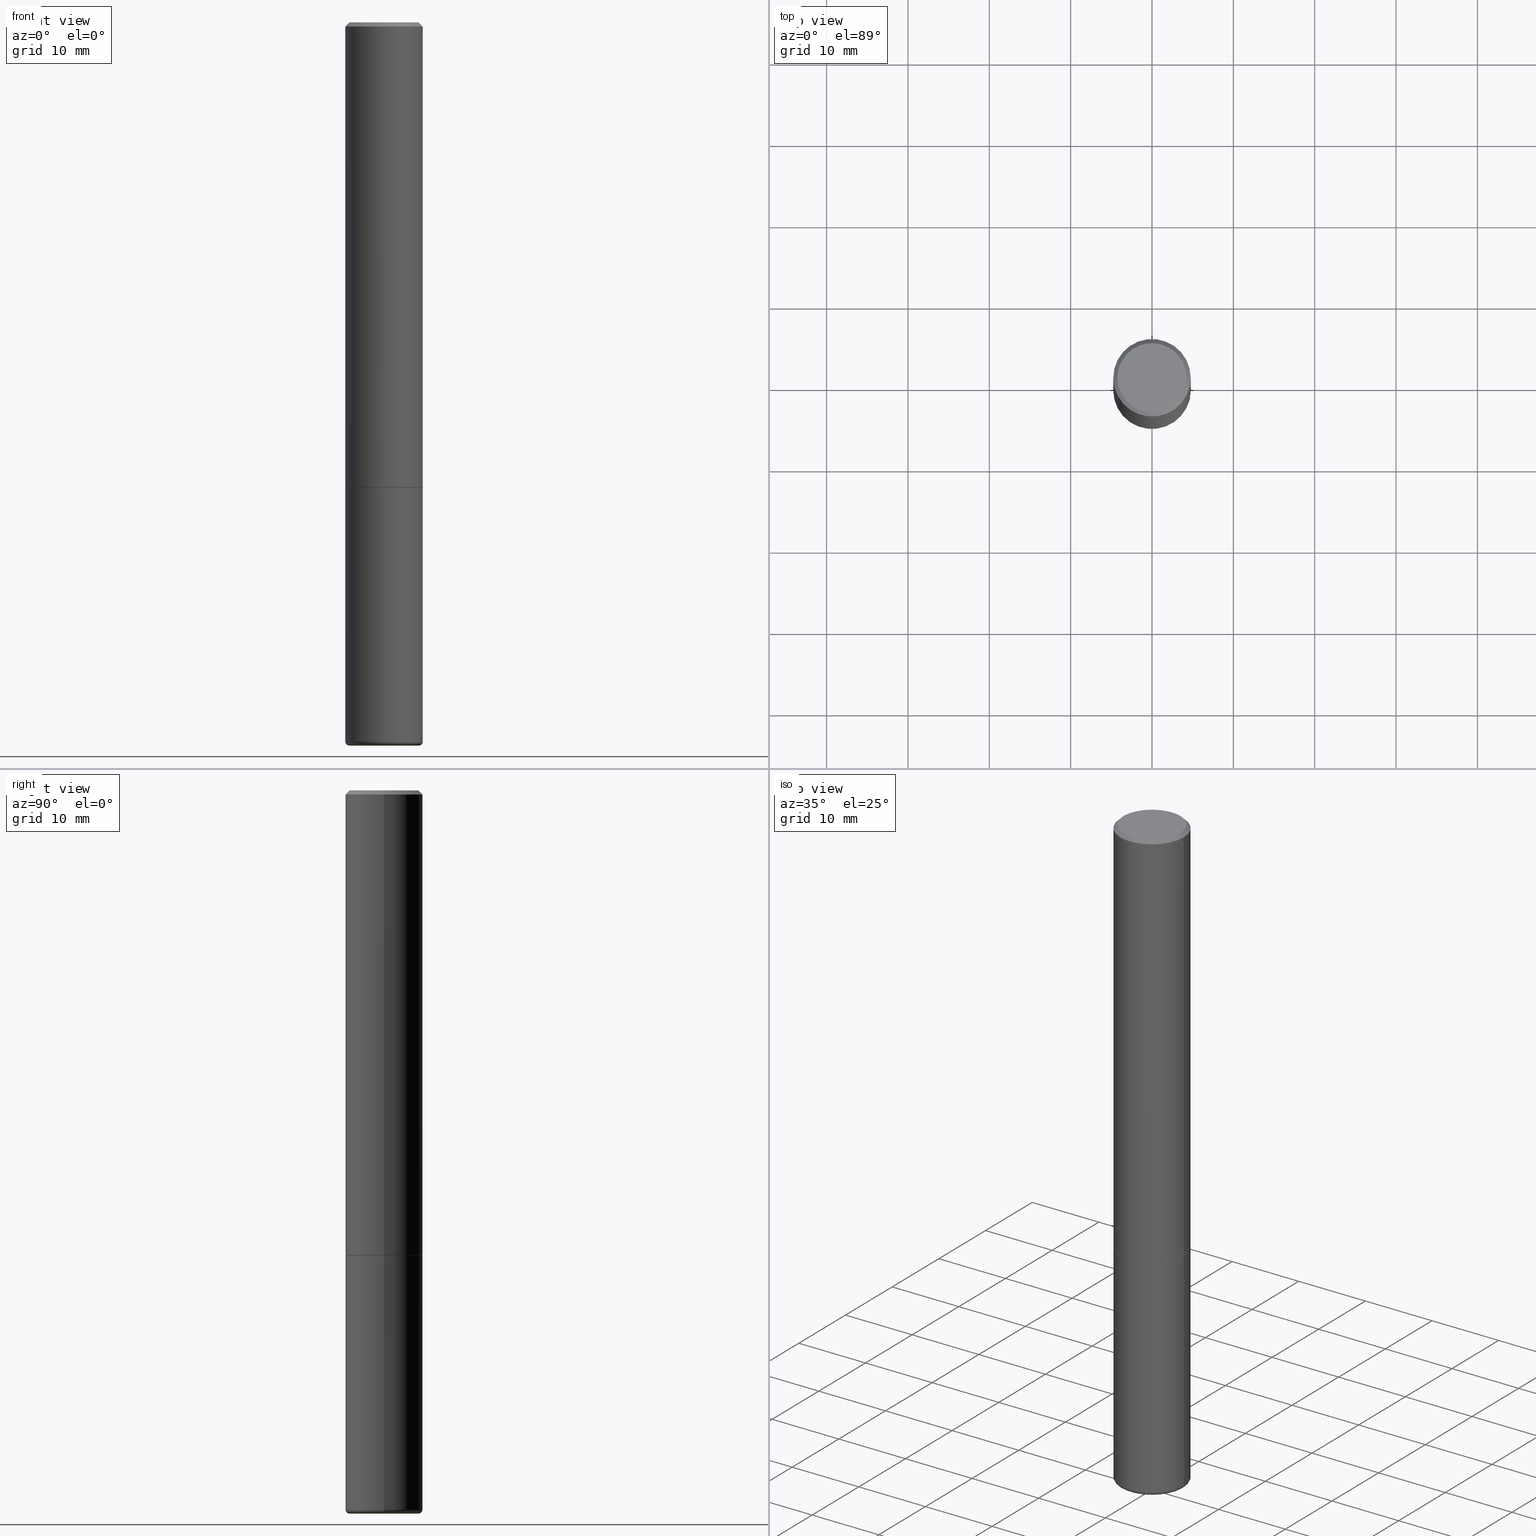
[diagram: canonical four-view strip — front | top / right | iso, engineering-drawing reading convention]
A machine part, canonical four-view strip (front | top / right | iso — engineering-drawing reading convention). The complete STEP part file that produces these views, byte-faithful:
ISO-10303-21;
HEADER;
FILE_DESCRIPTION (( 'STEP AP203' ),
    '1' );
FILE_NAME ('33462.STEP',
    '2022-11-02T20:12:53',
    ( '' ),
    ( '' ),
    'SwSTEP 2.0',
    'SolidWorks 2022',
    '' );
FILE_SCHEMA (( 'CONFIG_CONTROL_DESIGN' ));
ENDSEC;

DATA;
#1 = DIRECTION ( 'NONE',  ( -2.445468806185136877E-29, 3.491481338843145188E-15, 1.000000000000000000 ) ) ;
#2 = CC_DESIGN_PERSON_AND_ORGANIZATION_ASSIGNMENT ( #371, #306, ( #216 ) ) ;
#3 = DIRECTION ( 'NONE',  ( -0.9999619230641714207, 6.952228252019235511E-15, -0.008726535498355246501 ) ) ;
#4 = DIRECTION ( 'NONE',  ( -2.445468806185136597E-29, 3.491481338843145583E-15, 1.000000000000000000 ) ) ;
#5 = VERTEX_POINT ( 'NONE', #22 ) ;
#6 = CARTESIAN_POINT ( 'NONE',  ( -0.1675000000000002043, -1.096019863567419321E-14, -3.480000761538716514 ) ) ;
#7 = DIRECTION ( 'NONE',  ( -1.000000000000000000, 6.982962677686265133E-15, 0.000000000000000000 ) ) ;
#8 = APPROVAL ( #405, 'UNSPECIFIED' ) ;
#9 = FACE_OUTER_BOUND ( 'NONE', #156, .T. ) ;
#10 = DIRECTION ( 'NONE',  ( -2.445468806185136597E-29, 3.491481338843145583E-15, 1.000000000000000000 ) ) ;
#11 = DIRECTION ( 'NONE',  ( -2.445468806185136597E-29, 3.491481338843145583E-15, 1.000000000000000000 ) ) ;
#12 = FACE_OUTER_BOUND ( 'NONE', #208, .T. ) ;
#13 = MANIFOLD_SOLID_BREP ( 'Body-Move/Copy2[2]', #46 ) ;
#14 = DESIGN_CONTEXT ( 'detailed design', #209, 'design' ) ;
#15 = EDGE_CURVE ( 'NONE', #67, #95, #146, .T. ) ;
#16 = DIRECTION ( 'NONE',  ( -1.000000000000000000, 6.982962677686265922E-15, -4.876176775795935793E-29 ) ) ;
#17 = CIRCLE ( 'NONE', #416, 0.01999999999999982001 ) ;
#18 = AXIS2_PLACEMENT_3D ( 'NONE', #252, #356, #7 ) ;
#19 = CIRCLE ( 'NONE', #232, 0.1673254692900328355 ) ;
#20 = DIRECTION ( 'NONE',  ( -2.445468806185136597E-29, 3.491481338843145583E-15, 1.000000000000000000 ) ) ;
#21 = CIRCLE ( 'NONE', #122, 0.1473267192900328260 ) ;
#22 = CARTESIAN_POINT ( 'NONE',  ( 0.1864999999999999714, -9.158155551785564287E-15, -2.249999999999999556 ) ) ;
#23 = LINE ( 'NONE', #268, #202 ) ;
#24 = APPROVAL_ROLE ( '' ) ;
#25 = ORIENTED_EDGE ( 'NONE', *, *, #89, .T. ) ;
#26 =( LENGTH_UNIT ( ) NAMED_UNIT ( * ) SI_UNIT ( $, .METRE. ) );
#27 = DIRECTION ( 'NONE',  ( -1.000000000000000000, 6.982962677686262766E-15, 0.000000000000000000 ) ) ;
#28 = DIRECTION ( 'NONE',  ( -2.445468806185136597E-29, 3.491481338843145583E-15, 1.000000000000000000 ) ) ;
#29 = APPROVAL_STATUS ( 'not_yet_approved' ) ;
#30 = CONICAL_SURFACE ( 'NONE', #295, 0.1874999999999993061, 0.7853981633974471688 ) ;
#31 = ORIENTED_EDGE ( 'NONE', *, *, #227, .F. ) ;
#32 = LENGTH_MEASURE_WITH_UNIT ( LENGTH_MEASURE( 0.02539999999999999897 ), #26 );
#33 = COORDINATED_UNIVERSAL_TIME_OFFSET ( 5, 0, .BEHIND. ) ;
#34 = CARTESIAN_POINT ( 'NONE',  ( -0.1473267192900328260, -1.119079834788911139E-14, -3.499825473552769850 ) ) ;
#35 = VERTEX_POINT ( 'NONE', #175 ) ;
#36 = AXIS2_PLACEMENT_3D ( 'NONE', #297, #394, #437 ) ;
#37 = CARTESIAN_POINT ( 'NONE',  ( -0.1673254692900328355, -1.105175717887237073E-14, -3.500000000000000000 ) ) ;
#38 = ORIENTED_EDGE ( 'NONE', *, *, #57, .F. ) ;
#39 = DIRECTION ( 'NONE',  ( 1.000000000000000000, -6.982962677686267499E-15, 4.876176775795935232E-29 ) ) ;
#40 = ADVANCED_FACE ( 'NONE', ( #9 ), #30, .T. ) ;
#41 = DIRECTION ( 'NONE',  ( 1.000000000000000000, -6.982962677686262766E-15, 0.000000000000000000 ) ) ;
#42 = CARTESIAN_POINT ( 'NONE',  ( -0.1875000000000000278, -8.670827735684531822E-15, -2.249999999999999556 ) ) ;
#43 = CARTESIAN_POINT ( 'NONE',  ( 0.1874999999999999722, -1.309305502066174811E-15, 9.142831454617378210E-30 ) ) ;
#44 = CIRCLE ( 'NONE', #323, 0.1874999999999999722 ) ;
#45 = ORIENTED_EDGE ( 'NONE', *, *, #346, .T. ) ;
#46 = CLOSED_SHELL ( 'NONE', ( #322, #165, #74, #40, #170, #336, #414, #400 ) ) ;
#47 = DIRECTION ( 'NONE',  ( -2.445468806185136597E-29, 3.491481338843145583E-15, 1.000000000000000000 ) ) ;
#48 = ORIENTED_EDGE ( 'NONE', *, *, #104, .F. ) ;
#49 = EDGE_CURVE ( 'NONE', #272, #382, #395, .T. ) ;
#50 = FACE_OUTER_BOUND ( 'NONE', #456, .T. ) ;
#51 = DIRECTION ( 'NONE',  ( 1.000000000000000000, -6.982962677686261189E-15, 0.000000000000000000 ) ) ;
#52 = ORIENTED_EDGE ( 'NONE', *, *, #466, .T. ) ;
#53 = VECTOR ( 'NONE', #280, 39.37007874015748143 ) ;
#54 = LOCAL_TIME ( 16, 12, 53.00000000000000000, #411 ) ;
#55 = AXIS2_PLACEMENT_3D ( 'NONE', #467, #429, #213 ) ;
#56 = DIRECTION ( 'NONE',  ( 1.000000000000000000, -6.982962677686263555E-15, 0.000000000000000000 ) ) ;
#57 = EDGE_CURVE ( 'NONE', #5, #225, #154, .T. ) ;
#58 = LINE ( 'NONE', #125, #238 ) ;
#59 = ORIENTED_EDGE ( 'NONE', *, *, #369, .T. ) ;
#60 = DIRECTION ( 'NONE',  ( -1.000000000000000000, 6.982962677686262766E-15, 0.000000000000000000 ) ) ;
#61 = CONICAL_SURFACE ( 'NONE', #491, 0.1473267192900328260, 1.535889741755007032 ) ;
#62 = CARTESIAN_POINT ( 'NONE',  ( 0.1673254692900328355, -1.336812073299146137E-14, -3.500000000000000000 ) ) ;
#63 = DATE_TIME_ROLE ( 'classification_date' ) ;
#64 = CIRCLE ( 'NONE', #343, 0.1875000000000000278 ) ;
#65 = DIRECTION ( 'NONE',  ( 1.000000000000000000, -6.982962677686265922E-15, 0.000000000000000000 ) ) ;
#66 = APPROVAL ( #29, 'UNSPECIFIED' ) ;
#67 = VERTEX_POINT ( 'NONE', #91 ) ;
#68 = CARTESIAN_POINT ( 'NONE',  ( 0.000000000000000000, 0.000000000000000000, 0.000000000000000000 ) ) ;
#69 = ORIENTED_EDGE ( 'NONE', *, *, #148, .T. ) ;
#70 = EDGE_CURVE ( 'NONE', #67, #147, #97, .T. ) ;
#71 = CALENDAR_DATE ( 2022, 2, 11 ) ;
#72 = CARTESIAN_POINT ( 'NONE',  ( 8.559140821647976968E-29, -1.222018468595100934E-14, -3.500000000000000000 ) ) ;
#73 = EDGE_LOOP ( 'NONE', ( #326, #109, #265 ) ) ;
#74 = ADVANCED_FACE ( 'NONE', ( #12 ), #344, .T. ) ;
#75 = CIRCLE ( 'NONE', #462, 0.1875000000000000278 ) ;
#76 = CARTESIAN_POINT ( 'NONE',  ( 0.1864999999999999714, -9.158155551785564287E-15, -2.249999999999999556 ) ) ;
#77 = DIRECTION ( 'NONE',  ( -2.445468806185136597E-29, 3.491481338843145583E-15, 1.000000000000000000 ) ) ;
#78 = ORIENTED_EDGE ( 'NONE', *, *, #15, .T. ) ;
#79 = CARTESIAN_POINT ( 'NONE',  ( 0.1473267192900328260, -1.323030999282488903E-14, -3.499825473552769850 ) ) ;
#80 = APPROVAL_DATE_TIME ( #422, #142 ) ;
#81 = DIRECTION ( 'NONE',  ( 0.9993908270190955401, -6.978169709227550954E-15, -0.03489949670250396679 ) ) ;
#82 = CIRCLE ( 'NONE', #309, 0.01999999999999982001 ) ;
#83 = PRODUCT_DEFINITION_FORMATION_WITH_SPECIFIED_SOURCE ( 'ANY', '', #163, .NOT_KNOWN. ) ;
#84 = EDGE_CURVE ( 'NONE', #237, #382, #19, .T. ) ;
#85 = CONICAL_SURFACE ( 'NONE', #278, 0.1473267192900328260, 1.535889741755007032 ) ;
#86 = CARTESIAN_POINT ( 'NONE',  ( -0.1673254692900328355, -1.092467790367817702E-14, -3.500000000000000000 ) ) ;
#87 = DIRECTION ( 'NONE',  ( -2.445468806185136597E-29, 3.491481338843145583E-15, 1.000000000000000000 ) ) ;
#88 = CARTESIAN_POINT ( 'NONE',  ( 0.000000000000000000, 0.000000000000000000, 0.000000000000000000 ) ) ;
#89 = EDGE_CURVE ( 'NONE', #133, #272, #311, .T. ) ;
#90 = CONICAL_SURFACE ( 'NONE', #18, 0.1673254692900328355, 1.562069680534943661 ) ;
#91 = CARTESIAN_POINT ( 'NONE',  ( -0.1674999999999992606, 1.204561061900875919E-15, -8.301862719484078158E-30 ) ) ;
#92 = DIRECTION ( 'NONE',  ( -2.445468806185136877E-29, 3.491481338843145188E-15, 1.000000000000000000 ) ) ;
#93 = DIRECTION ( 'NONE',  ( 2.445468806185136597E-29, -3.491481338843145583E-15, -1.000000000000000000 ) ) ;
#94 = DIRECTION ( 'NONE',  ( 2.445468806185136597E-29, -3.491481338843145583E-15, -1.000000000000000000 ) ) ;
#95 = VERTEX_POINT ( 'NONE', #193 ) ;
#96 = ORIENTED_EDGE ( 'NONE', *, *, #212, .F. ) ;
#97 = LINE ( 'NONE', #180, #448 ) ;
#98 = DIRECTION ( 'NONE',  ( 1.000000000000000000, -6.982962677686266711E-15, 4.876176775795935793E-29 ) ) ;
#99 = DIRECTION ( 'NONE',  ( -0.7071067811865466846, 2.468850131082247989E-15, -0.7071067811865483499 ) ) ;
#100 = ORIENTED_EDGE ( 'NONE', *, *, #479, .T. ) ;
#101 = MECHANICAL_CONTEXT ( 'NONE', #185, 'mechanical' ) ;
#102 = FACE_OUTER_BOUND ( 'NONE', #257, .T. ) ;
#103 = CIRCLE ( 'NONE', #123, 0.1864999999999999714 ) ;
#104 = EDGE_CURVE ( 'NONE', #319, #147, #196, .T. ) ;
#105 = LOCAL_TIME ( 16, 12, 53.00000000000000000, #300 ) ;
#106 = ORIENTED_EDGE ( 'NONE', *, *, #84, .F. ) ;
#107 = COORDINATED_UNIVERSAL_TIME_OFFSET ( 5, 0, .BEHIND. ) ;
#108 = EDGE_LOOP ( 'NONE', ( #38, #96 ) ) ;
#109 = ORIENTED_EDGE ( 'NONE', *, *, #308, .T. ) ;
#110 = APPROVAL_DATE_TIME ( #189, #66 ) ;
#111 = ADVANCED_FACE ( 'NONE', ( #399 ), #85, .F. ) ;
#112 = AXIS2_PLACEMENT_3D ( 'NONE', #423, #4, #198 ) ;
#113 = PERSON_AND_ORGANIZATION_ROLE ( 'classification_officer' ) ;
#114 = ADVANCED_BREP_SHAPE_REPRESENTATION ( '33462', ( #352, #13, #324 ), #246 ) ;
#115 = DIRECTION ( 'NONE',  ( 0.7071067811866320607, -2.468850131083142557E-15, 0.7071067811864629737 ) ) ;
#116 = CONICAL_SURFACE ( 'NONE', #391, 0.1864999999999999714, 0.7853981633975678500 ) ;
#117 = FACE_OUTER_BOUND ( 'NONE', #303, .T. ) ;
#118 = DIRECTION ( 'NONE',  ( 1.000000000000000000, -6.982962677686299054E-15, 0.000000000000000000 ) ) ;
#119 = CARTESIAN_POINT ( 'NONE',  ( 0.000000000000000000, 0.000000000000000000, 0.000000000000000000 ) ) ;
#120 = ORIENTED_EDGE ( 'NONE', *, *, #158, .T. ) ;
#121 = DIRECTION ( 'NONE',  ( -2.445468806185136597E-29, 3.491481338843145583E-15, 1.000000000000000000 ) ) ;
#122 = AXIS2_PLACEMENT_3D ( 'NONE', #206, #355, #157 ) ;
#123 = AXIS2_PLACEMENT_3D ( 'NONE', #315, #415, #353 ) ;
#124 = CARTESIAN_POINT ( 'NONE',  ( 0.000000000000000000, 0.000000000000000000, 0.000000000000000000 ) ) ;
#125 = CARTESIAN_POINT ( 'NONE',  ( -0.1473267192900328260, -1.119079834788911139E-14, -3.499825473552769850 ) ) ;
#126 = ORIENTED_EDGE ( 'NONE', *, *, #293, .F. ) ;
#127 = EDGE_CURVE ( 'NONE', #147, #319, #178, .T. ) ;
#128 = FACE_OUTER_BOUND ( 'NONE', #259, .T. ) ;
#129 = DIRECTION ( 'NONE',  ( 1.000000000000000000, -6.982962677686265133E-15, 0.000000000000000000 ) ) ;
#130 = PLANE ( 'NONE',  #287 ) ;
#131 = LOCAL_TIME ( 16, 12, 53.00000000000000000, #33 ) ;
#132 = DIRECTION ( 'NONE',  ( -2.445468806185136597E-29, 3.491481338843145583E-15, 1.000000000000000000 ) ) ;
#133 = VERTEX_POINT ( 'NONE', #34 ) ;
#134 = ORIENTED_EDGE ( 'NONE', *, *, #354, .T. ) ;
#135 = CARTESIAN_POINT ( 'NONE',  ( 5.502304813916556222E-29, -7.855833012397076871E-15, -2.249999999999999556 ) ) ;
#136 = ORIENTED_EDGE ( 'NONE', *, *, #182, .T. ) ;
#137 = ADVANCED_FACE ( 'NONE', ( #102 ), #410, .T. ) ;
#138 = ORIENTED_EDGE ( 'NONE', *, *, #420, .F. ) ;
#139 = APPROVAL_ROLE ( '' ) ;
#140 = DIRECTION ( 'NONE',  ( -2.445468806185136597E-29, 3.491481338843145583E-15, 1.000000000000000000 ) ) ;
#141 = DIRECTION ( 'NONE',  ( 2.445468806185136597E-29, -3.491481338843145583E-15, -1.000000000000000000 ) ) ;
#142 = APPROVAL ( #194, 'UNSPECIFIED' ) ;
#143 = CIRCLE ( 'NONE', #312, 0.1875000000000000278 ) ;
#144 = APPROVAL_PERSON_ORGANIZATION ( #223, #142, #139 ) ;
#145 = DIMENSIONAL_EXPONENTS ( 1.000000000000000000, 0.000000000000000000, 0.000000000000000000, 0.000000000000000000, 0.000000000000000000, 0.000000000000000000, 0.000000000000000000 ) ;
#146 = CIRCLE ( 'NONE', #221, 0.1674999999999992606 ) ;
#147 = VERTEX_POINT ( 'NONE', #439 ) ;
#148 = EDGE_CURVE ( 'NONE', #35, #284, #357, .T. ) ;
#149 = DATE_TIME_ROLE ( 'creation_date' ) ;
#150 = ORIENTED_EDGE ( 'NONE', *, *, #84, .T. ) ;
#151 = PERSON_AND_ORGANIZATION ( #362, #179 ) ;
#152 = AXIS2_PLACEMENT_3D ( 'NONE', #88, #476, #434 ) ;
#153 = PERSON_AND_ORGANIZATION ( #362, #179 ) ;
#154 = CIRCLE ( 'NONE', #55, 0.1864999999999999714 ) ;
#155 = AXIS2_PLACEMENT_3D ( 'NONE', #363, #207, #16 ) ;
#156 = EDGE_LOOP ( 'NONE', ( #475, #316, #328, #406 ) ) ;
#157 = DIRECTION ( 'NONE',  ( 1.000000000000000000, -6.982962677686262766E-15, 0.000000000000000000 ) ) ;
#158 = EDGE_CURVE ( 'NONE', #284, #319, #23, .T. ) ;
#159 = ORIENTED_EDGE ( 'NONE', *, *, #258, .T. ) ;
#160 = APPROVAL_PERSON_ORGANIZATION ( #151, #66, #335 ) ;
#161 = CARTESIAN_POINT ( 'NONE',  ( 0.1874999999999993061, -1.356173001359020339E-15, -0.02000000000000007327 ) ) ;
#162 = CLOSED_SHELL ( 'NONE', ( #339, #288, #137, #111, #441, #359, #373, #235, #473 ) ) ;
#163 = PRODUCT ( '33462', '33462', '', ( #101 ) ) ;
#164 = ORIENTED_EDGE ( 'NONE', *, *, #242, .F. ) ;
#165 = ADVANCED_FACE ( 'NONE', ( #128 ), #435, .T. ) ;
#166 = CARTESIAN_POINT ( 'NONE',  ( 0.1473267192900328260, -1.323030999282488903E-14, -3.499825473552769850 ) ) ;
#167 = FACE_OUTER_BOUND ( 'NONE', #378, .T. ) ;
#168 = CARTESIAN_POINT ( 'NONE',  ( 5.499859345110371740E-29, -7.852341531058233864E-15, -2.248999999999999666 ) ) ;
#169 = VECTOR ( 'NONE', #1, 39.37007874015748143 ) ;
#170 = ADVANCED_FACE ( 'NONE', ( #117 ), #277, .T. ) ;
#171 = ORIENTED_EDGE ( 'NONE', *, *, #487, .F. ) ;
#172 = DIRECTION ( 'NONE',  ( 2.445468806185136597E-29, -3.491481338843145583E-15, -1.000000000000000000 ) ) ;
#173 = CARTESIAN_POINT ( 'NONE',  ( -0.1874999999999999722, 1.332267629550187651E-15, -9.223003294227946589E-30 ) ) ;
#174 = VERTEX_POINT ( 'NONE', #458 ) ;
#175 = CARTESIAN_POINT ( 'NONE',  ( -0.1875000000000000278, -2.628817949367352449E-15, -2.248999999999999666 ) ) ;
#176 = CARTESIAN_POINT ( 'NONE',  ( 4.890937612370290675E-31, -6.982962677686316261E-17, -0.02000000000000007327 ) ) ;
#177 = CARTESIAN_POINT ( 'NONE',  ( 0.1673254692900328355, -1.338861219302964796E-14, -3.500000000000000000 ) ) ;
#178 = CIRCLE ( 'NONE', #264, 0.1874999999999993061 ) ;
#179 = ORGANIZATION ( 'UNSPECIFIED', 'UNSPECIFIED', '' ) ;
#180 = CARTESIAN_POINT ( 'NONE',  ( -0.1874999999999993061, 1.239475875289307174E-15, -0.02000000000000007327 ) ) ;
#181 = DIRECTION ( 'NONE',  ( -1.000000000000000000, 6.982962677686265133E-15, 0.000000000000000000 ) ) ;
#182 = EDGE_CURVE ( 'NONE', #5, #284, #203, .T. ) ;
#183 = EDGE_LOOP ( 'NONE', ( #313, #360, #418 ) ) ;
#184 = CARTESIAN_POINT ( 'NONE',  ( 8.558714022665422020E-29, -1.221957533011737117E-14, -3.499825473552769850 ) ) ;
#185 = APPLICATION_CONTEXT ( 'configuration controlled 3d designs of mechanical parts and assemblies' ) ;
#186 = ORIENTED_EDGE ( 'NONE', *, *, #250, .T. ) ;
#187 = CIRCLE ( 'NONE', #440, 0.1874999999999999722 ) ;
#188 = LOCAL_TIME ( 16, 12, 53.00000000000000000, #107 ) ;
#189 = DATE_AND_TIME ( #446, #188 ) ;
#190 = ORIENTED_EDGE ( 'NONE', *, *, #346, .F. ) ;
#191 = CALENDAR_DATE ( 2022, 2, 11 ) ;
#192 = ORIENTED_EDGE ( 'NONE', *, *, #479, .F. ) ;
#193 = CARTESIAN_POINT ( 'NONE',  ( 0.1674999999999992606, -1.252653207992873555E-15, 8.469775550109204352E-30 ) ) ;
#194 = APPROVAL_STATUS ( 'not_yet_approved' ) ;
#195 = VECTOR ( 'NONE', #3, 39.37007874015748854 ) ;
#196 = CIRCLE ( 'NONE', #463, 0.1874999999999993061 ) ;
#197 = CC_DESIGN_PERSON_AND_ORGANIZATION_ASSIGNMENT ( #481, #304, ( #163 ) ) ;
#198 = DIRECTION ( 'NONE',  ( 1.000000000000000000, -6.982962677686262766E-15, 4.883557194083111219E-29 ) ) ;
#199 = EDGE_LOOP ( 'NONE', ( #329, #291, #136, #421 ) ) ;
#200 = DIRECTION ( 'NONE',  ( -1.000000000000000000, 7.105427357600989237E-15, 0.000000000000000000 ) ) ;
#201 = CARTESIAN_POINT ( 'NONE',  ( -0.1874999999999996392, 1.332267629550185285E-15, -9.223003294227931175E-30 ) ) ;
#202 = VECTOR ( 'NONE', #92, 39.37007874015748143 ) ;
#203 = LINE ( 'NONE', #76, #332 ) ;
#204 = EDGE_LOOP ( 'NONE', ( #78, #59 ) ) ;
#205 = CC_DESIGN_PERSON_AND_ORGANIZATION_ASSIGNMENT ( #338, #113, ( #266 ) ) ;
#206 = CARTESIAN_POINT ( 'NONE',  ( 8.558714022665422020E-29, -1.221957533011737117E-14, -3.499825473552769850 ) ) ;
#207 = DIRECTION ( 'NONE',  ( 2.438088387897960049E-29, -3.491481338843145188E-15, -1.000000000000000000 ) ) ;
#208 = EDGE_LOOP ( 'NONE', ( #282, #159, #459, #431 ) ) ;
#209 = APPLICATION_CONTEXT ( 'configuration controlled 3d designs of mechanical parts and assemblies' ) ;
#210 = FACE_OUTER_BOUND ( 'NONE', #108, .T. ) ;
#211 = TOROIDAL_SURFACE ( 'NONE', #112, 0.1675000000000002043, 0.01999999999999983041 ) ;
#212 = EDGE_CURVE ( 'NONE', #225, #5, #103, .T. ) ;
#213 = DIRECTION ( 'NONE',  ( 1.000000000000000000, -6.982962677686263555E-15, 0.000000000000000000 ) ) ;
#214 = CARTESIAN_POINT ( 'NONE',  ( 1.309305502066230031E-15, 0.1874999999999921729, -2.250000000000000444 ) ) ;
#215 = DIRECTION ( 'NONE',  ( -0.9993908270190955401, 6.856857904024546215E-15, -0.03489949670250396679 ) ) ;
#216 = PRODUCT_DEFINITION ( 'UNKNOWN', '', #83, #14 ) ;
#217 = DIRECTION ( 'NONE',  ( 0.9999619230641714207, -6.890705306874777996E-15, -0.008726535498355246501 ) ) ;
#218 = EDGE_LOOP ( 'NONE', ( #164, #150, #186, #374 ) ) ;
#219 = DIRECTION ( 'NONE',  ( -0.7071067811866320607, 7.493145998870660238E-15, 0.7071067811864629737 ) ) ;
#220 = AXIS2_PLACEMENT_3D ( 'NONE', #436, #331, #389 ) ;
#221 = AXIS2_PLACEMENT_3D ( 'NONE', #124, #11, #427 ) ;
#222 = VECTOR ( 'NONE', #219, 39.37007874015748143 ) ;
#223 = PERSON_AND_ORGANIZATION ( #362, #179 ) ;
#224 = DIRECTION ( 'NONE',  ( 1.000000000000000000, -6.982962677686266711E-15, 4.876176775795935793E-29 ) ) ;
#225 = VERTEX_POINT ( 'NONE', #239 ) ;
#226 = DIRECTION ( 'NONE',  ( 1.000000000000000000, 0.000000000000000000, 0.000000000000000000 ) ) ;
#227 = EDGE_CURVE ( 'NONE', #281, #174, #348, .T. ) ;
#228 = SECURITY_CLASSIFICATION_LEVEL ( 'unclassified' ) ;
#229 = DIRECTION ( 'NONE',  ( 1.000000000000000000, -6.982962677686265133E-15, 0.000000000000000000 ) ) ;
#230 = ORIENTED_EDGE ( 'NONE', *, *, #487, .T. ) ;
#231 = CC_DESIGN_SECURITY_CLASSIFICATION ( #266, ( #83 ) ) ;
#232 = AXIS2_PLACEMENT_3D ( 'NONE', #72, #234, #229 ) ;
#233 = COORDINATED_UNIVERSAL_TIME_OFFSET ( 5, 0, .BEHIND. ) ;
#234 = DIRECTION ( 'NONE',  ( -2.445468806185136597E-29, 3.491481338843145583E-15, 1.000000000000000000 ) ) ;
#235 = ADVANCED_FACE ( 'NONE', ( #350 ), #211, .T. ) ;
#236 = CARTESIAN_POINT ( 'NONE',  ( 8.558714022665422020E-29, -1.221957533011737117E-14, -3.499825473552769850 ) ) ;
#237 = VERTEX_POINT ( 'NONE', #86 ) ;
#238 = VECTOR ( 'NONE', #215, 39.37007874015748143 ) ;
#239 = CARTESIAN_POINT ( 'NONE',  ( -0.1864999999999999714, -6.525372355856267628E-15, -2.249999999999999556 ) ) ;
#240 = CALENDAR_DATE ( 2022, 2, 11 ) ;
#241 = DIRECTION ( 'NONE',  ( 1.000000000000000000, -6.982962677686262766E-15, 4.883557194083111219E-29 ) ) ;
#242 = EDGE_CURVE ( 'NONE', #237, #294, #17, .T. ) ;
#243 = LINE ( 'NONE', #161, #53 ) ;
#244 = ORIENTED_EDGE ( 'NONE', *, *, #49, .T. ) ;
#245 = AXIS2_PLACEMENT_3D ( 'NONE', #119, #455, #39 ) ;
#246 =( GEOMETRIC_REPRESENTATION_CONTEXT ( 3 ) GLOBAL_UNCERTAINTY_ASSIGNED_CONTEXT ( ( #424 ) ) GLOBAL_UNIT_ASSIGNED_CONTEXT ( ( #372, #342, #375 ) ) REPRESENTATION_CONTEXT ( 'NONE', 'WORKASPACE' ) );
#247 = DIRECTION ( 'NONE',  ( -2.445468806185136877E-29, 3.491481338843145188E-15, 1.000000000000000000 ) ) ;
#248 = DIRECTION ( 'NONE',  ( -2.445468806185136597E-29, 3.491481338843145583E-15, 1.000000000000000000 ) ) ;
#249 = EDGE_LOOP ( 'NONE', ( #171, #469, #397, #298 ) ) ;
#250 = EDGE_CURVE ( 'NONE', #382, #281, #82, .T. ) ;
#251 = LINE ( 'NONE', #173, #351 ) ;
#252 = CARTESIAN_POINT ( 'NONE',  ( 8.559140821647976968E-29, -1.222018468595100934E-14, -3.500000000000000000 ) ) ;
#253 = AXIS2_PLACEMENT_3D ( 'NONE', #396, #20, #98 ) ;
#254 = ORIENTED_EDGE ( 'NONE', *, *, #302, .F. ) ;
#255 = ORIENTED_EDGE ( 'NONE', *, *, #250, .F. ) ;
#256 = CARTESIAN_POINT ( 'NONE',  ( 8.510233307843451119E-29, -1.215035771807236405E-14, -3.480000761538716514 ) ) ;
#257 = EDGE_LOOP ( 'NONE', ( #45, #230, #305, #31 ) ) ;
#258 = EDGE_CURVE ( 'NONE', #95, #319, #243, .T. ) ;
#259 = EDGE_LOOP ( 'NONE', ( #100, #444, #48, #457 ) ) ;
#260 = VERTEX_POINT ( 'NONE', #286 ) ;
#261 = CARTESIAN_POINT ( 'NONE',  ( 8.558714022665422020E-29, -1.221957533011737117E-14, -3.499825473552769850 ) ) ;
#262 = EDGE_LOOP ( 'NONE', ( #25, #244, #106, #254 ) ) ;
#263 = APPROVAL_DATE_TIME ( #307, #8 ) ;
#264 = AXIS2_PLACEMENT_3D ( 'NONE', #490, #449, #408 ) ;
#265 = ORIENTED_EDGE ( 'NONE', *, *, #89, .F. ) ;
#266 = SECURITY_CLASSIFICATION ( '', '', #228 ) ;
#267 = CC_DESIGN_PERSON_AND_ORGANIZATION_ASSIGNMENT ( #478, #270, ( #83 ) ) ;
#268 = CARTESIAN_POINT ( 'NONE',  ( 0.1874999999999996392, -1.309305502066172642E-15, 9.142831454617361395E-30 ) ) ;
#269 = PERSON_AND_ORGANIZATION ( #362, #179 ) ;
#270 = PERSON_AND_ORGANIZATION_ROLE ( 'creator' ) ;
#271 = CC_DESIGN_DATE_AND_TIME_ASSIGNMENT ( #402, #63, ( #266 ) ) ;
#272 = VERTEX_POINT ( 'NONE', #166 ) ;
#273 = DIRECTION ( 'NONE',  ( 0.000000000000000000, 0.000000000000000000, 1.000000000000000000 ) ) ;
#274 = CIRCLE ( 'NONE', #486, 0.1673254692900328355 ) ;
#275 = CARTESIAN_POINT ( 'NONE',  ( 5.499859345110371740E-29, -7.852341531058233864E-15, -2.248999999999999666 ) ) ;
#276 = VERTEX_POINT ( 'NONE', #42 ) ;
#277 = CYLINDRICAL_SURFACE ( 'NONE', #245, 0.1874999999999996392 ) ;
#278 = AXIS2_PLACEMENT_3D ( 'NONE', #184, #141, #27 ) ;
#279 = VECTOR ( 'NONE', #217, 39.37007874015748854 ) ;
#280 = DIRECTION ( 'NONE',  ( 0.7071067811865466846, -7.319954787623252890E-15, -0.7071067811865483499 ) ) ;
#281 = VERTEX_POINT ( 'NONE', #318 ) ;
#282 = ORIENTED_EDGE ( 'NONE', *, *, #369, .F. ) ;
#283 = DIRECTION ( 'NONE',  ( -6.982962677686266711E-15, -1.000000000000000000, 3.491481338843145583E-15 ) ) ;
#284 = VERTEX_POINT ( 'NONE', #379 ) ;
#285 = AXIS2_PLACEMENT_3D ( 'NONE', #472, #93, #181 ) ;
#286 = CARTESIAN_POINT ( 'NONE',  ( 8.546132666690465105E-29, -1.220161248818996440E-14, -3.494680711148466568 ) ) ;
#287 = AXIS2_PLACEMENT_3D ( 'NONE', #214, #327, #292 ) ;
#288 = ADVANCED_FACE ( 'NONE', ( #167 ), #409, .T. ) ;
#289 = PLANE ( 'NONE',  #220 ) ;
#290 = DIRECTION ( 'NONE',  ( 1.000000000000000000, -6.982962677686266711E-15, 0.000000000000000000 ) ) ;
#291 = ORIENTED_EDGE ( 'NONE', *, *, #212, .T. ) ;
#292 = DIRECTION ( 'NONE',  ( -1.000000000000000000, 6.982962677686265922E-15, -4.876176775795935793E-29 ) ) ;
#293 = EDGE_CURVE ( 'NONE', #35, #147, #380, .T. ) ;
#294 = VERTEX_POINT ( 'NONE', #377 ) ;
#295 = AXIS2_PLACEMENT_3D ( 'NONE', #401, #172, #433 ) ;
#296 = FACE_OUTER_BOUND ( 'NONE', #204, .T. ) ;
#297 = CARTESIAN_POINT ( 'NONE',  ( 0.000000000000000000, 0.000000000000000000, 0.000000000000000000 ) ) ;
#298 = ORIENTED_EDGE ( 'NONE', *, *, #466, .F. ) ;
#299 = DIRECTION ( 'NONE',  ( 1.000000000000000000, -6.982962677686263555E-15, 0.000000000000000000 ) ) ;
#300 = COORDINATED_UNIVERSAL_TIME_OFFSET ( 5, 0, .BEHIND. ) ;
#301 = AXIS2_PLACEMENT_3D ( 'NONE', #376, #477, #224 ) ;
#302 = EDGE_CURVE ( 'NONE', #133, #237, #314, .T. ) ;
#303 = EDGE_LOOP ( 'NONE', ( #126, #69, #120, #482 ) ) ;
#304 = PERSON_AND_ORGANIZATION_ROLE ( 'design_owner' ) ;
#305 = ORIENTED_EDGE ( 'NONE', *, *, #354, .F. ) ;
#306 = PERSON_AND_ORGANIZATION_ROLE ( 'creator' ) ;
#307 = DATE_AND_TIME ( #485, #131 ) ;
#308 = EDGE_CURVE ( 'NONE', #260, #272, #419, .T. ) ;
#309 = AXIS2_PLACEMENT_3D ( 'NONE', #452, #283, #118 ) ;
#310 = CC_DESIGN_APPROVAL ( #8, ( #216 ) ) ;
#311 = CIRCLE ( 'NONE', #489, 0.1473267192900328260 ) ;
#312 = AXIS2_PLACEMENT_3D ( 'NONE', #468, #87, #51 ) ;
#313 = ORIENTED_EDGE ( 'NONE', *, *, #308, .F. ) ;
#314 = LINE ( 'NONE', #37, #195 ) ;
#315 = CARTESIAN_POINT ( 'NONE',  ( 5.502304813916556222E-29, -7.855833012397075293E-15, -2.249999999999999556 ) ) ;
#316 = ORIENTED_EDGE ( 'NONE', *, *, #15, .F. ) ;
#317 = LOCAL_TIME ( 16, 12, 53.00000000000000000, #233 ) ;
#318 = CARTESIAN_POINT ( 'NONE',  ( 0.1874999999999999722, -1.345966322013853748E-14, -3.480000761538716514 ) ) ;
#319 = VERTEX_POINT ( 'NONE', #492 ) ;
#320 = FACE_OUTER_BOUND ( 'NONE', #370, .T. ) ;
#321 = FACE_OUTER_BOUND ( 'NONE', #199, .T. ) ;
#322 = ADVANCED_FACE ( 'NONE', ( #320 ), #116, .T. ) ;
#323 = AXIS2_PLACEMENT_3D ( 'NONE', #392, #10, #56 ) ;
#324 = AXIS2_PLACEMENT_3D ( 'NONE', #68, #273, #226 ) ;
#325 = DIRECTION ( 'NONE',  ( -2.445468806185136597E-29, 3.491481338843145583E-15, 1.000000000000000000 ) ) ;
#326 = ORIENTED_EDGE ( 'NONE', *, *, #386, .F. ) ;
#327 = DIRECTION ( 'NONE',  ( 2.438088387897960049E-29, -3.491481338843145188E-15, -1.000000000000000000 ) ) ;
#328 = ORIENTED_EDGE ( 'NONE', *, *, #70, .T. ) ;
#329 = ORIENTED_EDGE ( 'NONE', *, *, #454, .F. ) ;
#330 = EDGE_CURVE ( 'NONE', #272, #133, #21, .T. ) ;
#331 = DIRECTION ( 'NONE',  ( -2.438088387897960049E-29, 3.491481338843145188E-15, 1.000000000000000000 ) ) ;
#332 = VECTOR ( 'NONE', #115, 39.37007874015748143 ) ;
#333 = FACE_OUTER_BOUND ( 'NONE', #183, .T. ) ;
#334 = CARTESIAN_POINT ( 'NONE',  ( -0.1864999999999999714, -6.530670810204490030E-15, -2.249999999999999556 ) ) ;
#335 = APPROVAL_ROLE ( '' ) ;
#336 = ADVANCED_FACE ( 'NONE', ( #321 ), #461, .T. ) ;
#337 = APPLICATION_PROTOCOL_DEFINITION ( 'international standard', 'config_control_design', 1994, #185 ) ;
#338 = PERSON_AND_ORGANIZATION ( #362, #179 ) ;
#339 = ADVANCED_FACE ( 'NONE', ( #451 ), #480, .F. ) ;
#340 = APPLICATION_PROTOCOL_DEFINITION ( 'international standard', 'config_control_design', 1994, #209 ) ;
#341 = CARTESIAN_POINT ( 'NONE',  ( 4.890937612370290675E-31, -6.982962677686316261E-17, -0.02000000000000007327 ) ) ;
#342 =( NAMED_UNIT ( * ) PLANE_ANGLE_UNIT ( ) SI_UNIT ( $, .RADIAN. ) );
#343 = AXIS2_PLACEMENT_3D ( 'NONE', #135, #248, #388 ) ;
#344 = CONICAL_SURFACE ( 'NONE', #393, 0.1874999999999993061, 0.7853981633974471688 ) ;
#345 = DIRECTION ( 'NONE',  ( 7.105427357601001859E-15, 1.000000000000000000, -3.491481338843145583E-15 ) ) ;
#346 = EDGE_CURVE ( 'NONE', #281, #294, #187, .T. ) ;
#347 = ORIENTED_EDGE ( 'NONE', *, *, #242, .T. ) ;
#348 = LINE ( 'NONE', #43, #169 ) ;
#349 = PRODUCT_DEFINITION_SHAPE ( 'NONE', 'NONE',  #216 ) ;
#350 = FACE_OUTER_BOUND ( 'NONE', #218, .T. ) ;
#351 = VECTOR ( 'NONE', #430, 39.37007874015748143 ) ;
#352 = MANIFOLD_SOLID_BREP ( 'Body-Move/Copy2[1]', #162 ) ;
#353 = DIRECTION ( 'NONE',  ( 1.000000000000000000, -6.982962677686263555E-15, 0.000000000000000000 ) ) ;
#354 = EDGE_CURVE ( 'NONE', #174, #276, #143, .T. ) ;
#355 = DIRECTION ( 'NONE',  ( -2.445468806185136597E-29, 3.491481338843145583E-15, 1.000000000000000000 ) ) ;
#356 = DIRECTION ( 'NONE',  ( 2.445468806185136597E-29, -3.491481338843145583E-15, -1.000000000000000000 ) ) ;
#357 = CIRCLE ( 'NONE', #425, 0.1875000000000000278 ) ;
#358 = CARTESIAN_POINT ( 'NONE',  ( 8.559140821647976968E-29, -1.222018468595100934E-14, -3.500000000000000000 ) ) ;
#359 = ADVANCED_FACE ( 'NONE', ( #438 ), #130, .F. ) ;
#360 = ORIENTED_EDGE ( 'NONE', *, *, #386, .T. ) ;
#361 = LINE ( 'NONE', #334, #222 ) ;
#362 = PERSON ( 'UNSPECIFIED', 'UNSPECIFIED', 'UNSPECIFIED', ('UNSPECIFIED'), ('UNSPECIFIED'), ('UNSPECIFIED') ) ;
#363 = CARTESIAN_POINT ( 'NONE',  ( 1.169646248512444468E-15, 0.1674999999999992606, -5.848231242562243045E-16 ) ) ;
#364 = VECTOR ( 'NONE', #81, 39.37007874015748143 ) ;
#365 = CYLINDRICAL_SURFACE ( 'NONE', #253, 0.1874999999999999722 ) ;
#366 = DIRECTION ( 'NONE',  ( -1.000000000000000000, 6.982962677686265922E-15, 0.000000000000000000 ) ) ;
#367 = CIRCLE ( 'NONE', #152, 0.1674999999999992606 ) ;
#368 = ORIENTED_EDGE ( 'NONE', *, *, #182, .F. ) ;
#369 = EDGE_CURVE ( 'NONE', #95, #67, #367, .T. ) ;
#370 = EDGE_LOOP ( 'NONE', ( #474, #404, #192, #368 ) ) ;
#371 = PERSON_AND_ORGANIZATION ( #362, #179 ) ;
#372 =( CONVERSION_BASED_UNIT ( 'INCH', #32 ) LENGTH_UNIT ( ) NAMED_UNIT ( #145 ) );
#373 = ADVANCED_FACE ( 'NONE', ( #464 ), #365, .T. ) ;
#374 = ORIENTED_EDGE ( 'NONE', *, *, #450, .F. ) ;
#375 =( NAMED_UNIT ( * ) SI_UNIT ( $, .STERADIAN. ) SOLID_ANGLE_UNIT ( ) );
#376 = CARTESIAN_POINT ( 'NONE',  ( 0.000000000000000000, 0.000000000000000000, 0.000000000000000000 ) ) ;
#377 = CARTESIAN_POINT ( 'NONE',  ( -0.1874999999999999722, -8.670827735684531822E-15, -3.480000761538716514 ) ) ;
#378 = EDGE_LOOP ( 'NONE', ( #412, #347, #190, #255 ) ) ;
#379 = CARTESIAN_POINT ( 'NONE',  ( 0.1875000000000000278, -9.161647033124408872E-15, -2.248999999999999666 ) ) ;
#380 = LINE ( 'NONE', #201, #447 ) ;
#381 = EDGE_LOOP ( 'NONE', ( #134, #52 ) ) ;
#382 = VERTEX_POINT ( 'NONE', #177 ) ;
#383 = CARTESIAN_POINT ( 'NONE',  ( 5.502304813916556222E-29, -7.855833012397075293E-15, -2.249999999999999556 ) ) ;
#384 = ORIENTED_EDGE ( 'NONE', *, *, #330, .T. ) ;
#385 = AXIS2_PLACEMENT_3D ( 'NONE', #417, #77, #241 ) ;
#386 = EDGE_CURVE ( 'NONE', #260, #133, #58, .T. ) ;
#387 = DIRECTION ( 'NONE',  ( 1.000000000000000000, -6.982962677686263555E-15, 0.000000000000000000 ) ) ;
#388 = DIRECTION ( 'NONE',  ( 1.000000000000000000, -6.982962677686261189E-15, 0.000000000000000000 ) ) ;
#389 = DIRECTION ( 'NONE',  ( 1.000000000000000000, -6.982962677686265922E-15, 4.876176775795935793E-29 ) ) ;
#390 = CC_DESIGN_PERSON_AND_ORGANIZATION_ASSIGNMENT ( #153, #483, ( #83 ) ) ;
#391 = AXIS2_PLACEMENT_3D ( 'NONE', #383, #47, #387 ) ;
#392 = CARTESIAN_POINT ( 'NONE',  ( 8.510233307843451119E-29, -1.215035771807236405E-14, -3.480000761538716514 ) ) ;
#393 = AXIS2_PLACEMENT_3D ( 'NONE', #176, #94, #366 ) ;
#394 = DIRECTION ( 'NONE',  ( -2.445468806185136597E-29, 3.491481338843145583E-15, 1.000000000000000000 ) ) ;
#395 = LINE ( 'NONE', #62, #279 ) ;
#396 = CARTESIAN_POINT ( 'NONE',  ( 0.000000000000000000, 0.000000000000000000, 0.000000000000000000 ) ) ;
#397 = ORIENTED_EDGE ( 'NONE', *, *, #227, .T. ) ;
#398 = DIRECTION ( 'NONE',  ( 2.445468806185136597E-29, -3.491481338843145583E-15, -1.000000000000000000 ) ) ;
#399 = FACE_OUTER_BOUND ( 'NONE', #73, .T. ) ;
#400 = ADVANCED_FACE ( 'NONE', ( #296 ), #470, .F. ) ;
#401 = CARTESIAN_POINT ( 'NONE',  ( 4.890937612370290675E-31, -6.982962677686316261E-17, -0.02000000000000007327 ) ) ;
#402 = DATE_AND_TIME ( #71, #54 ) ;
#403 = CC_DESIGN_APPROVAL ( #142, ( #266 ) ) ;
#404 = ORIENTED_EDGE ( 'NONE', *, *, #454, .T. ) ;
#405 = APPROVAL_STATUS ( 'not_yet_approved' ) ;
#406 = ORIENTED_EDGE ( 'NONE', *, *, #127, .T. ) ;
#407 = CC_DESIGN_DATE_AND_TIME_ASSIGNMENT ( #442, #149, ( #216 ) ) ;
#408 = DIRECTION ( 'NONE',  ( 1.000000000000000000, -6.982962677686265922E-15, 0.000000000000000000 ) ) ;
#409 = TOROIDAL_SURFACE ( 'NONE', #385, 0.1675000000000002043, 0.01999999999999983041 ) ;
#410 = CYLINDRICAL_SURFACE ( 'NONE', #301, 0.1874999999999999722 ) ;
#411 = COORDINATED_UNIVERSAL_TIME_OFFSET ( 5, 0, .BEHIND. ) ;
#412 = ORIENTED_EDGE ( 'NONE', *, *, #420, .T. ) ;
#413 = ORIENTED_EDGE ( 'NONE', *, *, #302, .T. ) ;
#414 = ADVANCED_FACE ( 'NONE', ( #210 ), #289, .F. ) ;
#415 = DIRECTION ( 'NONE',  ( -2.445468806185136597E-29, 3.491481338843145583E-15, 1.000000000000000000 ) ) ;
#416 = AXIS2_PLACEMENT_3D ( 'NONE', #6, #345, #200 ) ;
#417 = CARTESIAN_POINT ( 'NONE',  ( 8.510233307843451119E-29, -1.215035771807236405E-14, -3.480000761538716514 ) ) ;
#418 = ORIENTED_EDGE ( 'NONE', *, *, #330, .F. ) ;
#419 = LINE ( 'NONE', #79, #364 ) ;
#420 = EDGE_CURVE ( 'NONE', #382, #237, #274, .T. ) ;
#421 = ORIENTED_EDGE ( 'NONE', *, *, #148, .F. ) ;
#422 = DATE_AND_TIME ( #240, #105 ) ;
#423 = CARTESIAN_POINT ( 'NONE',  ( 8.510233307843451119E-29, -1.215035771807236405E-14, -3.480000761538716514 ) ) ;
#424 = UNCERTAINTY_MEASURE_WITH_UNIT (LENGTH_MEASURE( 1.000000000000000082E-05 ), #372, 'distance_accuracy_value', 'NONE');
#425 = AXIS2_PLACEMENT_3D ( 'NONE', #275, #28, #445 ) ;
#426 = DIRECTION ( 'NONE',  ( 1.000000000000000000, -6.982962677686263555E-15, 0.000000000000000000 ) ) ;
#427 = DIRECTION ( 'NONE',  ( 1.000000000000000000, -6.982962677686266711E-15, 4.876176775795935793E-29 ) ) ;
#428 = DIRECTION ( 'NONE',  ( -2.445468806185136597E-29, 3.491481338843145583E-15, 1.000000000000000000 ) ) ;
#429 = DIRECTION ( 'NONE',  ( -2.445468806185136597E-29, 3.491481338843145583E-15, 1.000000000000000000 ) ) ;
#430 = DIRECTION ( 'NONE',  ( -2.445468806185136877E-29, 3.491481338843145188E-15, 1.000000000000000000 ) ) ;
#431 = ORIENTED_EDGE ( 'NONE', *, *, #70, .F. ) ;
#432 = APPROVAL_PERSON_ORGANIZATION ( #269, #8, #24 ) ;
#433 = DIRECTION ( 'NONE',  ( -1.000000000000000000, 6.982962677686265922E-15, 0.000000000000000000 ) ) ;
#434 = DIRECTION ( 'NONE',  ( 1.000000000000000000, -6.982962677686266711E-15, 4.876176775795935793E-29 ) ) ;
#435 = CYLINDRICAL_SURFACE ( 'NONE', #36, 0.1874999999999996392 ) ;
#436 = CARTESIAN_POINT ( 'NONE',  ( 5.502304813916556222E-29, -7.855833012397076871E-15, -2.249999999999999556 ) ) ;
#437 = DIRECTION ( 'NONE',  ( 1.000000000000000000, -6.982962677686267499E-15, 4.876176775795935232E-29 ) ) ;
#438 = FACE_OUTER_BOUND ( 'NONE', #381, .T. ) ;
#439 = CARTESIAN_POINT ( 'NONE',  ( -0.1874999999999993061, 1.239475875289307174E-15, -0.02000000000000007327 ) ) ;
#440 = AXIS2_PLACEMENT_3D ( 'NONE', #256, #132, #299 ) ;
#441 = ADVANCED_FACE ( 'NONE', ( #333 ), #61, .F. ) ;
#442 = DATE_AND_TIME ( #191, #317 ) ;
#443 = PRODUCT_RELATED_PRODUCT_CATEGORY ( 'detail', '', ( #163 ) ) ;
#444 = ORIENTED_EDGE ( 'NONE', *, *, #293, .T. ) ;
#445 = DIRECTION ( 'NONE',  ( 1.000000000000000000, -6.982962677686266711E-15, 0.000000000000000000 ) ) ;
#446 = CALENDAR_DATE ( 2022, 2, 11 ) ;
#447 = VECTOR ( 'NONE', #247, 39.37007874015748143 ) ;
#448 = VECTOR ( 'NONE', #99, 39.37007874015748143 ) ;
#449 = DIRECTION ( 'NONE',  ( -2.445468806185136597E-29, 3.491481338843145583E-15, 1.000000000000000000 ) ) ;
#450 = EDGE_CURVE ( 'NONE', #294, #281, #44, .T. ) ;
#451 = FACE_OUTER_BOUND ( 'NONE', #262, .T. ) ;
#452 = CARTESIAN_POINT ( 'NONE',  ( 0.1675000000000002043, -1.332000396658481562E-14, -3.480000761538716514 ) ) ;
#453 = SHAPE_DEFINITION_REPRESENTATION ( #349, #114 ) ;
#454 = EDGE_CURVE ( 'NONE', #225, #35, #361, .T. ) ;
#455 = DIRECTION ( 'NONE',  ( -2.445468806185136597E-29, 3.491481338843145583E-15, 1.000000000000000000 ) ) ;
#456 = EDGE_LOOP ( 'NONE', ( #465, #384, #413, #138 ) ) ;
#457 = ORIENTED_EDGE ( 'NONE', *, *, #158, .F. ) ;
#458 = CARTESIAN_POINT ( 'NONE',  ( 0.1875000000000000278, -9.165138514463251879E-15, -2.249999999999999556 ) ) ;
#459 = ORIENTED_EDGE ( 'NONE', *, *, #104, .T. ) ;
#460 = CARTESIAN_POINT ( 'NONE',  ( 5.502304813916556222E-29, -7.855833012397075293E-15, -2.249999999999999556 ) ) ;
#461 = CONICAL_SURFACE ( 'NONE', #471, 0.1864999999999999714, 0.7853981633975678500 ) ;
#462 = AXIS2_PLACEMENT_3D ( 'NONE', #168, #325, #290 ) ;
#463 = AXIS2_PLACEMENT_3D ( 'NONE', #341, #484, #65 ) ;
#464 = FACE_OUTER_BOUND ( 'NONE', #249, .T. ) ;
#465 = ORIENTED_EDGE ( 'NONE', *, *, #49, .F. ) ;
#466 = EDGE_CURVE ( 'NONE', #276, #174, #64, .T. ) ;
#467 = CARTESIAN_POINT ( 'NONE',  ( 5.502304813916556222E-29, -7.855833012397075293E-15, -2.249999999999999556 ) ) ;
#468 = CARTESIAN_POINT ( 'NONE',  ( 5.502304813916556222E-29, -7.855833012397076871E-15, -2.249999999999999556 ) ) ;
#469 = ORIENTED_EDGE ( 'NONE', *, *, #450, .T. ) ;
#470 = PLANE ( 'NONE',  #155 ) ;
#471 = AXIS2_PLACEMENT_3D ( 'NONE', #460, #121, #426 ) ;
#472 = CARTESIAN_POINT ( 'NONE',  ( 8.559140821647976968E-29, -1.222018468595100934E-14, -3.500000000000000000 ) ) ;
#473 = ADVANCED_FACE ( 'NONE', ( #50 ), #90, .F. ) ;
#474 = ORIENTED_EDGE ( 'NONE', *, *, #57, .T. ) ;
#475 = ORIENTED_EDGE ( 'NONE', *, *, #258, .F. ) ;
#476 = DIRECTION ( 'NONE',  ( -2.445468806185136597E-29, 3.491481338843145583E-15, 1.000000000000000000 ) ) ;
#477 = DIRECTION ( 'NONE',  ( -2.445468806185136597E-29, 3.491481338843145583E-15, 1.000000000000000000 ) ) ;
#478 = PERSON_AND_ORGANIZATION ( #362, #179 ) ;
#479 = EDGE_CURVE ( 'NONE', #284, #35, #75, .T. ) ;
#480 = CONICAL_SURFACE ( 'NONE', #285, 0.1673254692900328355, 1.562069680534943661 ) ;
#481 = PERSON_AND_ORGANIZATION ( #362, #179 ) ;
#482 = ORIENTED_EDGE ( 'NONE', *, *, #127, .F. ) ;
#483 = PERSON_AND_ORGANIZATION_ROLE ( 'design_supplier' ) ;
#484 = DIRECTION ( 'NONE',  ( -2.445468806185136597E-29, 3.491481338843145583E-15, 1.000000000000000000 ) ) ;
#485 = CALENDAR_DATE ( 2022, 2, 11 ) ;
#486 = AXIS2_PLACEMENT_3D ( 'NONE', #358, #428, #129 ) ;
#487 = EDGE_CURVE ( 'NONE', #294, #276, #251, .T. ) ;
#488 = CC_DESIGN_APPROVAL ( #66, ( #83 ) ) ;
#489 = AXIS2_PLACEMENT_3D ( 'NONE', #236, #140, #41 ) ;
#490 = CARTESIAN_POINT ( 'NONE',  ( 4.890937612370290675E-31, -6.982962677686316261E-17, -0.02000000000000007327 ) ) ;
#491 = AXIS2_PLACEMENT_3D ( 'NONE', #261, #398, #60 ) ;
#492 = CARTESIAN_POINT ( 'NONE',  ( 0.1874999999999993061, -1.356173001359020339E-15, -0.02000000000000007327 ) ) ;
ENDSEC;
END-ISO-10303-21;
